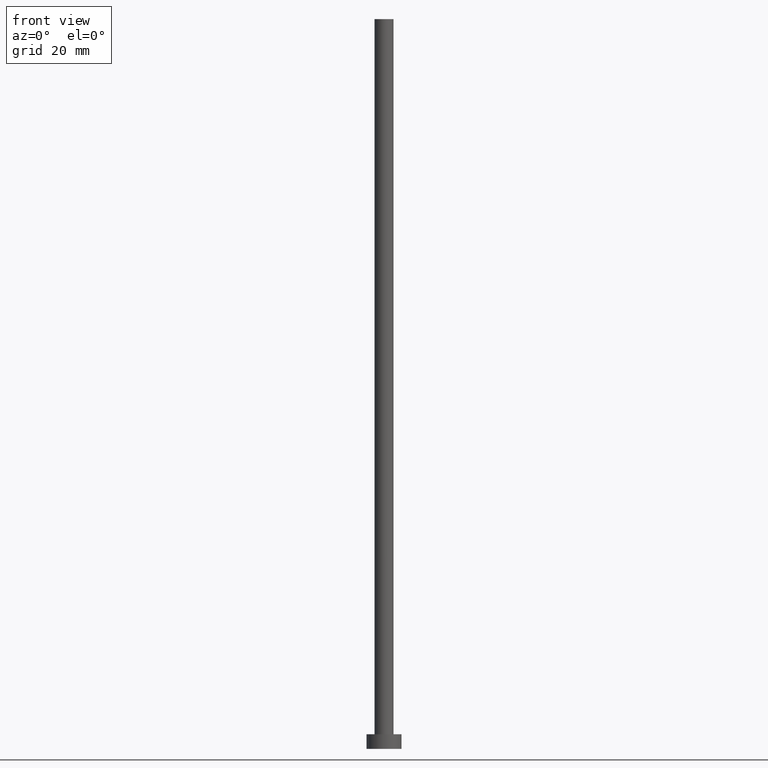
[diagram: clean part render]
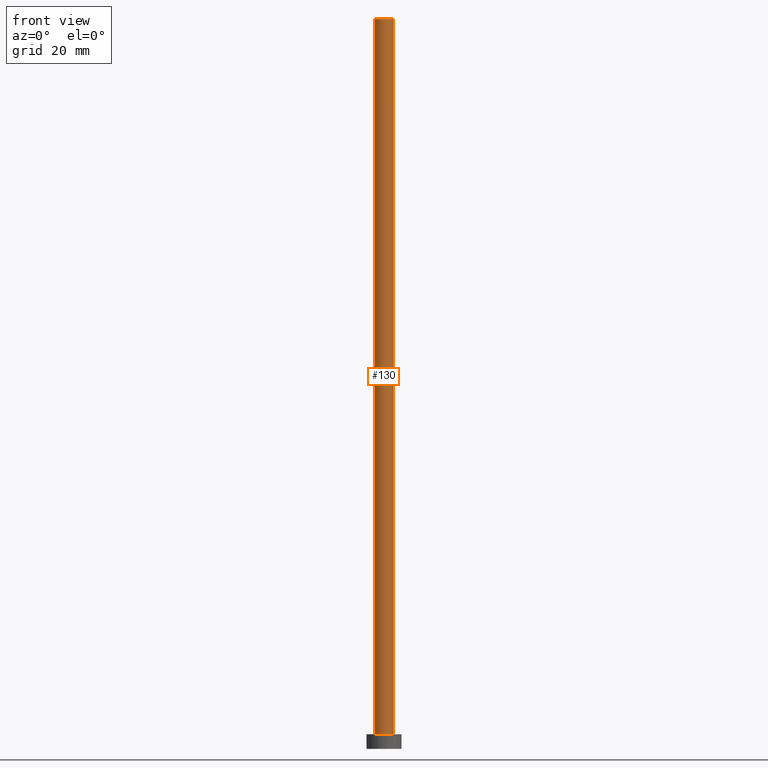
[diagram: same view with one face highlighted and labeled with its STEP entity id]
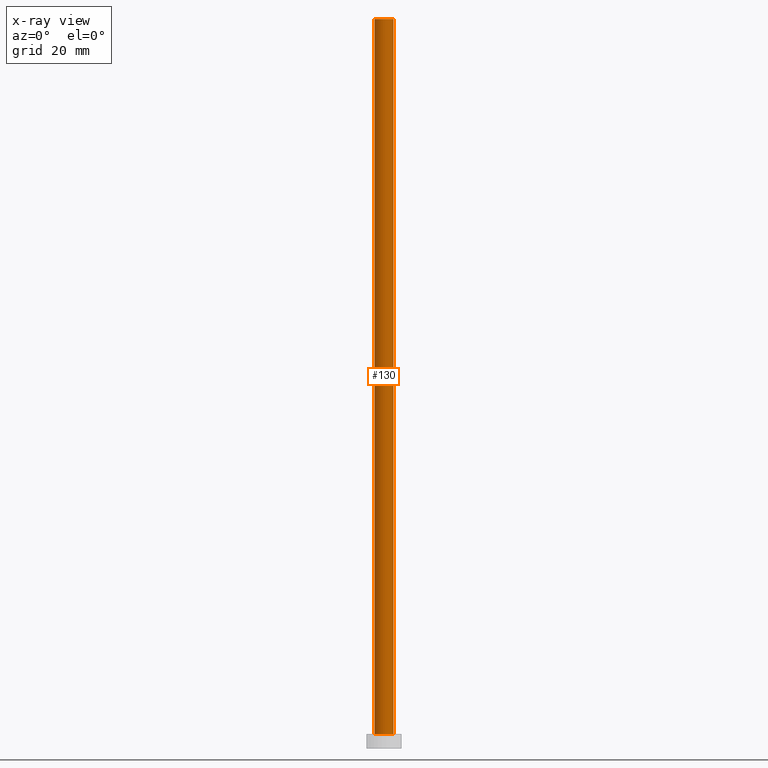
[diagram: x-ray of the same camera — body ghosted, the highlighted face saturated]
A machine part, front view. The second image highlights one B-rep face of the part: STEP entity #130.
The next image is the same camera in x-ray: the body ghosted, the highlighted face saturated — about 0% of this face is hidden behind the body in this view.
In plain terms, the highlighted cylindrical surface (edge-blend (fillet) strip) has radius 3.25 mm, axis along (-0, -0, -1).
Its self-contained STEP definition (entity closure, byte-faithful):
#2 = CIRCLE ( 'NONE', #26, 3.250000000000000444 ) ;
#7 = DIRECTION ( 'NONE',  ( 0.000000000000000000, 0.000000000000000000, 1.000000000000000000 ) ) ;
#8 = LINE ( 'NONE', #184, #203 ) ;
#11 = EDGE_CURVE ( 'NONE', #14, #111, #13, .T. ) ;
#13 = CIRCLE ( 'NONE', #81, 3.250000000000000444 ) ;
#14 = VERTEX_POINT ( 'NONE', #55 ) ;
#22 = EDGE_CURVE ( 'NONE', #14, #124, #131, .T. ) ;
#25 = EDGE_LOOP ( 'NONE', ( #229, #67, #92, #220 ) ) ;
#26 = AXIS2_PLACEMENT_3D ( 'NONE', #165, #7, #48 ) ;
#48 = DIRECTION ( 'NONE',  ( 1.000000000000000000, 0.000000000000000000, 0.000000000000000000 ) ) ;
#50 = FACE_OUTER_BOUND ( 'NONE', #25, .T. ) ;
#55 = CARTESIAN_POINT ( 'NONE',  ( -3.250000000000000444, 0.000000000000000000, 250.0000000000000000 ) ) ;
#67 = ORIENTED_EDGE ( 'NONE', *, *, #11, .F. ) ;
#76 = DIRECTION ( 'NONE',  ( -0.000000000000000000, -0.000000000000000000, -1.000000000000000000 ) ) ;
#81 = AXIS2_PLACEMENT_3D ( 'NONE', #231, #109, #248 ) ;
#89 = CYLINDRICAL_SURFACE ( 'NONE', #101, 3.250000000000000444 ) ;
#92 = ORIENTED_EDGE ( 'NONE', *, *, #22, .T. ) ;
#101 = AXIS2_PLACEMENT_3D ( 'NONE', #153, #234, #134 ) ;
#109 = DIRECTION ( 'NONE',  ( 0.000000000000000000, 0.000000000000000000, 1.000000000000000000 ) ) ;
#111 = VERTEX_POINT ( 'NONE', #152 ) ;
#116 = EDGE_CURVE ( 'NONE', #111, #149, #8, .T. ) ;
#124 = VERTEX_POINT ( 'NONE', #162 ) ;
#130 = ADVANCED_FACE ( 'NONE', ( #50 ), #89, .T. ) ;
#131 = LINE ( 'NONE', #251, #204 ) ;
#132 = CARTESIAN_POINT ( 'NONE',  ( 3.250000000000000444, 3.980102097228898231E-16, 5.000000000000000000 ) ) ;
#134 = DIRECTION ( 'NONE',  ( -1.000000000000000000, 0.000000000000000000, 0.000000000000000000 ) ) ;
#149 = VERTEX_POINT ( 'NONE', #132 ) ;
#152 = CARTESIAN_POINT ( 'NONE',  ( 3.250000000000000444, 3.980102097228898231E-16, 250.0000000000000000 ) ) ;
#153 = CARTESIAN_POINT ( 'NONE',  ( 0.000000000000000000, 0.000000000000000000, 250.0000000000000000 ) ) ;
#162 = CARTESIAN_POINT ( 'NONE',  ( -3.250000000000000444, 0.000000000000000000, 5.000000000000000000 ) ) ;
#165 = CARTESIAN_POINT ( 'NONE',  ( 0.000000000000000000, 0.000000000000000000, 5.000000000000000000 ) ) ;
#180 = DIRECTION ( 'NONE',  ( -0.000000000000000000, -0.000000000000000000, -1.000000000000000000 ) ) ;
#184 = CARTESIAN_POINT ( 'NONE',  ( 3.250000000000000444, 3.980102097228898231E-16, 250.0000000000000000 ) ) ;
#203 = VECTOR ( 'NONE', #180, 1000.000000000000000 ) ;
#204 = VECTOR ( 'NONE', #76, 1000.000000000000000 ) ;
#220 = ORIENTED_EDGE ( 'NONE', *, *, #225, .T. ) ;
#225 = EDGE_CURVE ( 'NONE', #124, #149, #2, .T. ) ;
#229 = ORIENTED_EDGE ( 'NONE', *, *, #116, .F. ) ;
#231 = CARTESIAN_POINT ( 'NONE',  ( 0.000000000000000000, 0.000000000000000000, 250.0000000000000000 ) ) ;
#234 = DIRECTION ( 'NONE',  ( -0.000000000000000000, -0.000000000000000000, -1.000000000000000000 ) ) ;
#248 = DIRECTION ( 'NONE',  ( 1.000000000000000000, 0.000000000000000000, 0.000000000000000000 ) ) ;
#251 = CARTESIAN_POINT ( 'NONE',  ( -3.250000000000000444, 0.000000000000000000, 250.0000000000000000 ) ) ;